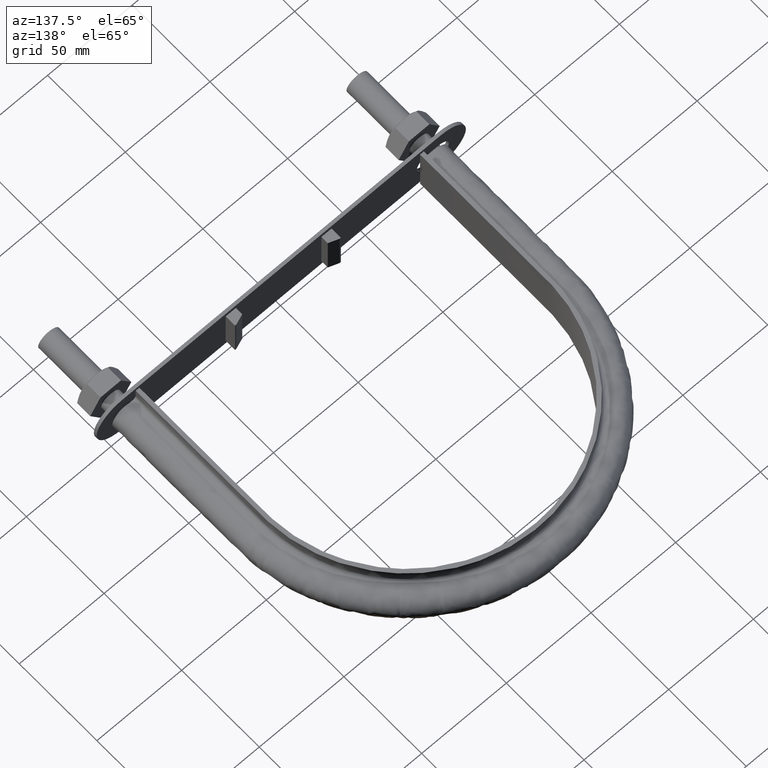
[diagram: clean part render]
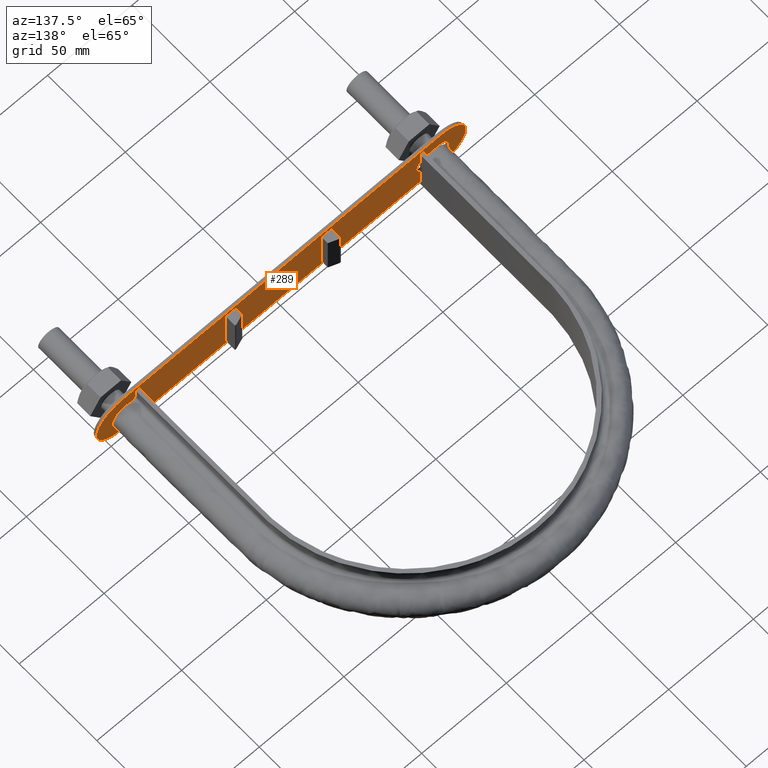
[diagram: same view with one face highlighted and labeled with its STEP entity id]
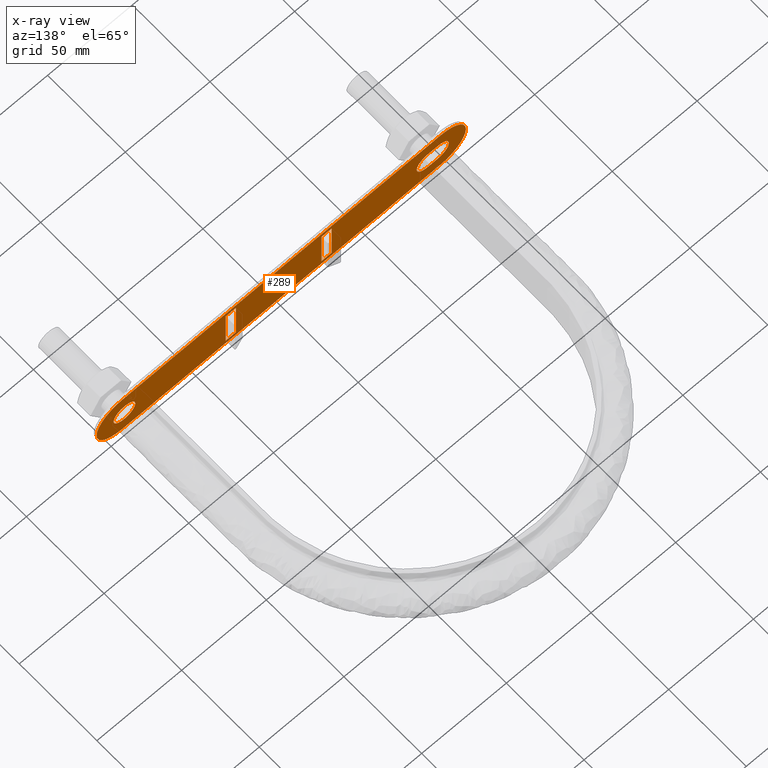
[diagram: x-ray of the same camera — body ghosted, the highlighted face saturated]
A machine part, auxiliary view. The second image highlights one B-rep face of the part: STEP entity #289.
The next image is the same camera in x-ray: the body ghosted, the highlighted face saturated — about 0% of this face is hidden behind the body in this view.
In plain terms, the highlighted planar face has unit normal (0, 1, 0).
Its self-contained STEP definition (entity closure, byte-faithful):
#289 = ADVANCED_FACE( '', ( #403, #404, #405, #406, #407 ), #408, .T. );
#403 = FACE_BOUND( '', #1489, .T. );
#404 = FACE_OUTER_BOUND( '', #1490, .T. );
#405 = FACE_BOUND( '', #1491, .T. );
#406 = FACE_BOUND( '', #1492, .T. );
#407 = FACE_BOUND( '', #1493, .T. );
#408 = PLANE( '', #1494 );
#1489 = EDGE_LOOP( '', ( #1801, #1802, #1803, #1804 ) );
#1490 = EDGE_LOOP( '', ( #1805, #1806, #1807, #1808, #1809, #1810 ) );
#1491 = EDGE_LOOP( '', ( #1811 ) );
#1492 = EDGE_LOOP( '', ( #1812, #1813, #1814, #1815 ) );
#1493 = EDGE_LOOP( '', ( #1816, #1817, #1818, #1819 ) );
#1494 = AXIS2_PLACEMENT_3D( '', #1820, #1821, #1822 );
#1801 = ORIENTED_EDGE( '', *, *, #2263, .T. );
#1802 = ORIENTED_EDGE( '', *, *, #2264, .T. );
#1803 = ORIENTED_EDGE( '', *, *, #2265, .F. );
#1804 = ORIENTED_EDGE( '', *, *, #2266, .F. );
#1805 = ORIENTED_EDGE( '', *, *, #2250, .T. );
#1806 = ORIENTED_EDGE( '', *, *, #2267, .T. );
#1807 = ORIENTED_EDGE( '', *, *, #2268, .T. );
#1808 = ORIENTED_EDGE( '', *, *, #2269, .T. );
#1809 = ORIENTED_EDGE( '', *, *, #2270, .T. );
#1810 = ORIENTED_EDGE( '', *, *, #2271, .T. );
#1811 = ORIENTED_EDGE( '', *, *, #2272, .F. );
#1812 = ORIENTED_EDGE( '', *, *, #2273, .F. );
#1813 = ORIENTED_EDGE( '', *, *, #2260, .F. );
#1814 = ORIENTED_EDGE( '', *, *, #2274, .F. );
#1815 = ORIENTED_EDGE( '', *, *, #2275, .F. );
#1816 = ORIENTED_EDGE( '', *, *, #2276, .F. );
#1817 = ORIENTED_EDGE( '', *, *, #2277, .T. );
#1818 = ORIENTED_EDGE( '', *, *, #2278, .T. );
#1819 = ORIENTED_EDGE( '', *, *, #2279, .F. );
#1820 = CARTESIAN_POINT( '', ( -95.5500000000000, 48.8000000000003, 7.48946718462292E-010 ) );
#1821 = DIRECTION( '', ( 2.44484870126044E-016, 1.00000000000000, 5.38325119430397E-017 ) );
#1822 = DIRECTION( '', ( 7.83837578177664E-012, -5.38325119449561E-017, 1.00000000000000 ) );
#2250 = EDGE_CURVE( '', #2471, #2472, #2473, .T. );
#2260 = EDGE_CURVE( '', #2487, #2488, #2489, .T. );
#2263 = EDGE_CURVE( '', #2492, #2493, #2494, .T. );
#2264 = EDGE_CURVE( '', #2493, #2495, #2496, .T. );
#2265 = EDGE_CURVE( '', #2497, #2495, #2498, .T. );
#2266 = EDGE_CURVE( '', #2492, #2497, #2499, .T. );
#2267 = EDGE_CURVE( '', #2472, #2500, #2501, .T. );
#2268 = EDGE_CURVE( '', #2500, #2502, #2503, .T. );
#2269 = EDGE_CURVE( '', #2502, #2504, #2505, .T. );
#2270 = EDGE_CURVE( '', #2504, #2506, #2507, .T. );
#2271 = EDGE_CURVE( '', #2506, #2471, #2508, .T. );
#2272 = EDGE_CURVE( '', #2509, #2509, #2510, .T. );
#2273 = EDGE_CURVE( '', #2488, #2511, #2512, .F. );
#2274 = EDGE_CURVE( '', #2513, #2487, #2514, .F. );
#2275 = EDGE_CURVE( '', #2511, #2513, #2515, .T. );
#2276 = EDGE_CURVE( '', #2516, #2517, #2518, .T. );
#2277 = EDGE_CURVE( '', #2516, #2519, #2520, .T. );
#2278 = EDGE_CURVE( '', #2519, #2521, #2522, .T. );
#2279 = EDGE_CURVE( '', #2517, #2521, #2523, .T. );
#2471 = VERTEX_POINT( '', #2977 );
#2472 = VERTEX_POINT( '', #2978 );
#2473 = CIRCLE( '', #2979, 15.0000000000000 );
#2487 = VERTEX_POINT( '', #3002 );
#2488 = VERTEX_POINT( '', #3003 );
#2489 = LINE( '', #3004, #3005 );
#2492 = VERTEX_POINT( '', #3010 );
#2493 = VERTEX_POINT( '', #3011 );
#2494 = LINE( '', #3012, #3013 );
#2495 = VERTEX_POINT( '', #3014 );
#2496 = LINE( '', #3015, #3016 );
#2497 = VERTEX_POINT( '', #3017 );
#2498 = LINE( '', #3018, #3019 );
#2499 = LINE( '', #3020, #3021 );
#2500 = VERTEX_POINT( '', #3022 );
#2501 = LINE( '', #3023, #3024 );
#2502 = VERTEX_POINT( '', #3025 );
#2503 = CIRCLE( '', #3026, 15.0000000000000 );
#2504 = VERTEX_POINT( '', #3027 );
#2505 = CIRCLE( '', #3028, 15.0000000000000 );
#2506 = VERTEX_POINT( '', #3029 );
#2507 = LINE( '', #3030, #3031 );
#2508 = CIRCLE( '', #3032, 15.0000000000000 );
#2509 = VERTEX_POINT( '', #3033 );
#2510 = CIRCLE( '', #3034, 6.40000000000000 );
#2511 = VERTEX_POINT( '', #3035 );
#2512 = CIRCLE( '', #3036, 6.50000000000000 );
#2513 = VERTEX_POINT( '', #3037 );
#2514 = CIRCLE( '', #3038, 6.50000000000000 );
#2515 = LINE( '', #3039, #3040 );
#2516 = VERTEX_POINT( '', #3041 );
#2517 = VERTEX_POINT( '', #3042 );
#2518 = LINE( '', #3043, #3044 );
#2519 = VERTEX_POINT( '', #3045 );
#2520 = LINE( '', #3046, #3047 );
#2521 = VERTEX_POINT( '', #3048 );
#2522 = LINE( '', #3049, #3050 );
#2523 = LINE( '', #3051, #3052 );
#2977 = CARTESIAN_POINT( '', ( -110.550000000000, 48.8000000000003, 8.66537967700226E-010 ) );
#2978 = CARTESIAN_POINT( '', ( -95.5499999998825, 48.8000000000003, 15.0000000007489 ) );
#2979 = AXIS2_PLACEMENT_3D( '', #3440, #3441, #3442 );
#3002 = CARTESIAN_POINT( '', ( -88.0000000000510, 48.8000000000003, -6.49999999931023 ) );
#3003 = CARTESIAN_POINT( '', ( -94.0000000000510, 48.8000000000003, -6.49999999926320 ) );
#3004 = CARTESIAN_POINT( '', ( -94.0000000000510, 48.8000000000003, -6.49999999926320 ) );
#3005 = VECTOR( '', #3452, 1000.00000000000 );
#3010 = CARTESIAN_POINT( '', ( -31.2500000000980, 48.8000000000003, -12.4999999997551 ) );
#3011 = CARTESIAN_POINT( '', ( -25.2500000000980, 48.8000000000003, -12.4999999998021 ) );
#3012 = CARTESIAN_POINT( '', ( -31.2500000000980, 48.8000000000003, -12.4999999997551 ) );
#3013 = VECTOR( '', #3455, 1000.00000000000 );
#3014 = CARTESIAN_POINT( '', ( -25.2499999999020, 48.8000000000003, 12.5000000001979 ) );
#3015 = CARTESIAN_POINT( '', ( -25.2500000000980, 48.8000000000003, -12.4999999998021 ) );
#3016 = VECTOR( '', #3456, 1000.00000000000 );
#3017 = CARTESIAN_POINT( '', ( -31.2499999999020, 48.8000000000003, 12.5000000002449 ) );
#3018 = CARTESIAN_POINT( '', ( -31.2499999999020, 48.8000000000003, 12.5000000002449 ) );
#3019 = VECTOR( '', #3457, 1000.00000000000 );
#3020 = CARTESIAN_POINT( '', ( -31.2500000000980, 48.8000000000003, -12.4999999997551 ) );
#3021 = VECTOR( '', #3458, 1000.00000000000 );
#3022 = CARTESIAN_POINT( '', ( 92.4500000001176, 48.8000000000003, 14.9999999992753 ) );
#3023 = CARTESIAN_POINT( '', ( -95.5499999998825, 48.8000000000003, 15.0000000007489 ) );
#3024 = VECTOR( '', #3459, 1000.00000000000 );
#3025 = CARTESIAN_POINT( '', ( 107.450000000000, 48.8000000000003, -8.42241830514890E-010 ) );
#3026 = AXIS2_PLACEMENT_3D( '', #3460, #3461, #3462 );
#3027 = CARTESIAN_POINT( '', ( 92.4499999998824, 48.8000000000003, -15.0000000007246 ) );
#3028 = AXIS2_PLACEMENT_3D( '', #3463, #3464, #3465 );
#3029 = CARTESIAN_POINT( '', ( -95.5500000001176, 48.8000000000003, -14.9999999992510 ) );
#3030 = CARTESIAN_POINT( '', ( 92.4499999998824, 48.8000000000003, -15.0000000007247 ) );
#3031 = VECTOR( '', #3466, 1000.00000000000 );
#3032 = AXIS2_PLACEMENT_3D( '', #3467, #3468, #3469 );
#3033 = CARTESIAN_POINT( '', ( 97.4000000000000, 48.8000100000003, -7.63466153907497E-010 ) );
#3034 = AXIS2_PLACEMENT_3D( '', #3470, #3471, #3472 );
#3035 = CARTESIAN_POINT( '', ( -93.9999999999491, 48.8000000000003, 6.50000000073679 ) );
#3036 = AXIS2_PLACEMENT_3D( '', #3473, #3474, #3475 );
#3037 = CARTESIAN_POINT( '', ( -87.9999999999491, 48.8000000000003, 6.50000000068976 ) );
#3038 = AXIS2_PLACEMENT_3D( '', #3476, #3477, #3478 );
#3039 = CARTESIAN_POINT( '', ( -87.9999999999491, 48.8000000000003, 6.50000000068976 ) );
#3040 = VECTOR( '', #3479, 1000.00000000000 );
#3041 = CARTESIAN_POINT( '', ( 25.2499999999020, 48.8000000000003, -12.5000000001979 ) );
#3042 = CARTESIAN_POINT( '', ( 25.2500000000980, 48.8000000000003, 12.4999999998021 ) );
#3043 = CARTESIAN_POINT( '', ( 25.2499999999020, 48.8000000000003, -12.5000000001979 ) );
#3044 = VECTOR( '', #3480, 1000.00000000000 );
#3045 = CARTESIAN_POINT( '', ( 31.2499999999020, 48.8000000000003, -12.5000000002450 ) );
#3046 = CARTESIAN_POINT( '', ( 25.2499999999020, 48.8000000000003, -12.5000000001979 ) );
#3047 = VECTOR( '', #3481, 1000.00000000000 );
#3048 = CARTESIAN_POINT( '', ( 31.2500000000979, 48.8000000000003, 12.4999999997550 ) );
#3049 = CARTESIAN_POINT( '', ( 31.2499999999020, 48.8000000000003, -12.5000000002450 ) );
#3050 = VECTOR( '', #3482, 1000.00000000000 );
#3051 = CARTESIAN_POINT( '', ( 25.2500000000980, 48.8000000000003, 12.4999999998021 ) );
#3052 = VECTOR( '', #3483, 1000.00000000000 );
#3440 = CARTESIAN_POINT( '', ( -95.5500000000000, 48.8000000000003, 7.48946718462292E-010 ) );
#3441 = DIRECTION( '', ( 2.44484870126044E-016, 1.00000000000000, 5.38325119430397E-017 ) );
#3442 = DIRECTION( '', ( -1.00000000000000, 2.44484870125622E-016, 7.83837578177664E-012 ) );
#3452 = DIRECTION( '', ( -1.00000000000000, 2.44484870125622E-016, 7.83837578177664E-012 ) );
#3455 = DIRECTION( '', ( 1.00000000000000, -2.44484870125622E-016, -7.83837578177664E-012 ) );
#3456 = DIRECTION( '', ( 7.83842887277717E-012, 2.81479070342049E-016, 1.00000000000000 ) );
#3457 = DIRECTION( '', ( 1.00000000000000, -2.44484870125622E-016, -7.83837578177664E-012 ) );
#3458 = DIRECTION( '', ( 7.83842887277717E-012, 2.81479070342049E-016, 1.00000000000000 ) );
#3459 = DIRECTION( '', ( 1.00000000000000, -2.44484870125622E-016, -7.83837578177664E-012 ) );
#3460 = CARTESIAN_POINT( '', ( 92.4500000000000, 48.8000000000003, -7.24667928511717E-010 ) );
#3461 = DIRECTION( '', ( 2.44484870126044E-016, 1.00000000000000, 5.38325119430397E-017 ) );
#3462 = DIRECTION( '', ( 7.83837578177664E-012, -5.38325119449561E-017, 1.00000000000000 ) );
#3463 = CARTESIAN_POINT( '', ( 92.4500000000000, 48.8000000000003, -7.24650581276957E-010 ) );
#3464 = DIRECTION( '', ( 2.44484870126044E-016, 1.00000000000000, 5.38325119430397E-017 ) );
#3465 = DIRECTION( '', ( 1.00000000000000, -2.44484870125622E-016, -7.83837578177664E-012 ) );
#3466 = DIRECTION( '', ( -1.00000000000000, 2.44484870125622E-016, 7.83837578177664E-012 ) );
#3467 = CARTESIAN_POINT( '', ( -95.5500000000001, 48.8000000000003, 7.48964065697052E-010 ) );
#3468 = DIRECTION( '', ( 2.44484870126044E-016, 1.00000000000000, 5.38325119430397E-017 ) );
#3469 = DIRECTION( '', ( -7.83837578177664E-012, 5.38325119449561E-017, -1.00000000000000 ) );
#3470 = CARTESIAN_POINT( '', ( 91.0000000000000, 48.8000100000003, -7.13300548904126E-010 ) );
#3471 = DIRECTION( '', ( 2.44484870126044E-016, 1.00000000000000, 5.38325119430397E-017 ) );
#3472 = DIRECTION( '', ( 1.00000000000000, -2.44484870125622E-016, -7.83837578177664E-012 ) );
#3473 = CARTESIAN_POINT( '', ( -94.0000000000000, 48.8000000000003, 7.36795501277062E-010 ) );
#3474 = DIRECTION( '', ( -2.44484870126044E-016, -1.00000000000000, -5.38325119430397E-017 ) );
#3475 = DIRECTION( '', ( -1.00000000000000, 2.44484870125622E-016, 7.83837578177664E-012 ) );
#3476 = CARTESIAN_POINT( '', ( -88.0000000000001, 48.8000000000003, 6.89765246586403E-010 ) );
#3477 = DIRECTION( '', ( -2.44484870126044E-016, -1.00000000000000, -5.38325119430397E-017 ) );
#3478 = DIRECTION( '', ( -1.00000000000000, 2.44484870125622E-016, 7.83837578177664E-012 ) );
#3479 = DIRECTION( '', ( 1.00000000000000, -2.44484870125622E-016, -7.83837578177664E-012 ) );
#3480 = DIRECTION( '', ( 7.83842887277717E-012, 2.81479070342049E-016, 1.00000000000000 ) );
#3481 = DIRECTION( '', ( 1.00000000000000, -2.44484870125622E-016, -7.83837578177664E-012 ) );
#3482 = DIRECTION( '', ( 7.83842887277717E-012, 2.81479070342049E-016, 1.00000000000000 ) );
#3483 = DIRECTION( '', ( 1.00000000000000, -2.44484870125622E-016, -7.83837578177664E-012 ) );